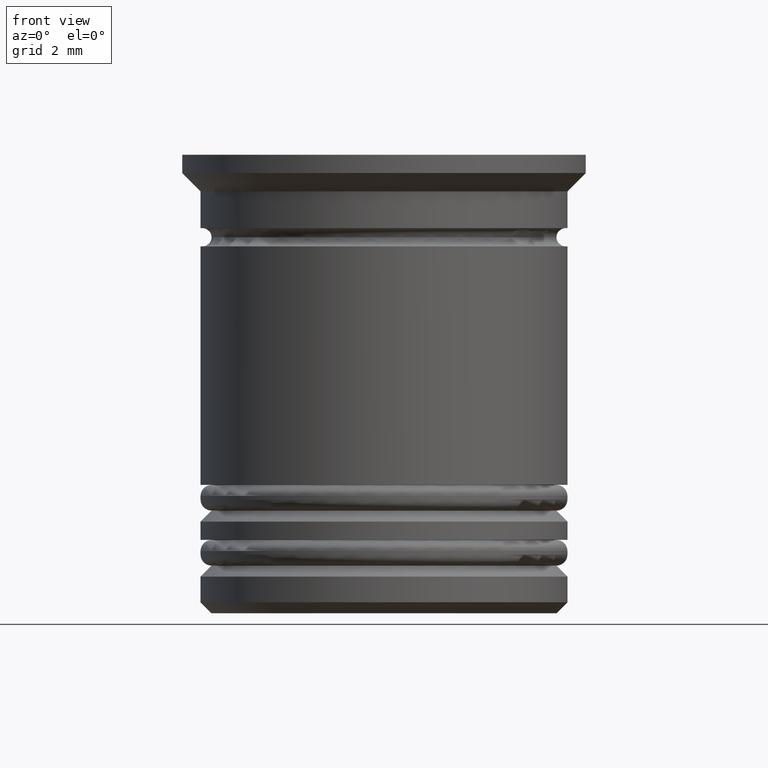
[diagram: clean part render]
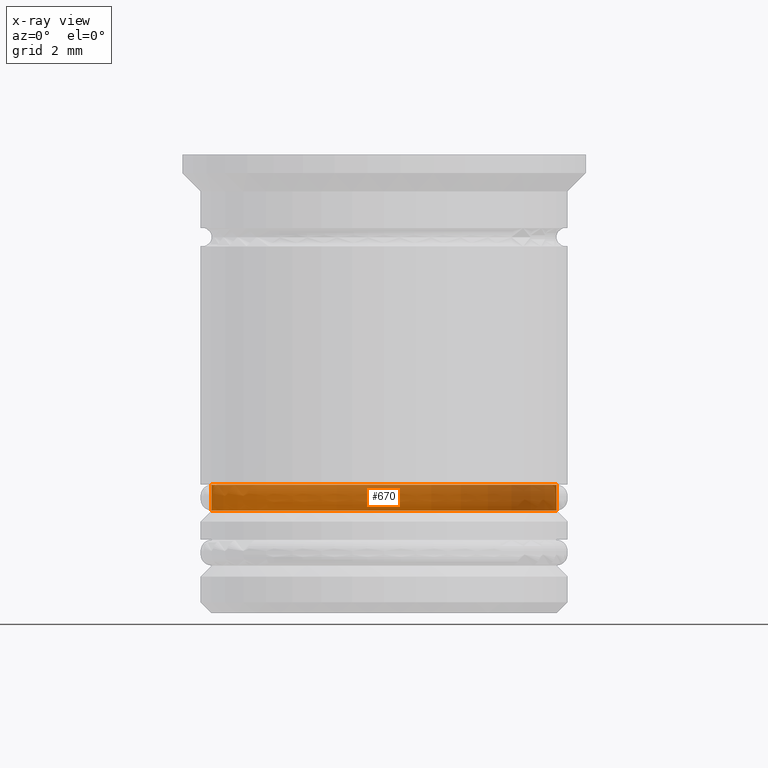
[diagram: x-ray — body ghosted, one internal face saturated and labeled with its STEP entity id]
A machine part, front view, then the same camera in x-ray: the body is ghosted and one INTERNAL B-rep face — a face not visible from any outside direction — is saturated and labeled: STEP entity #670.
In plain terms, the highlighted cylindrical surface (partial cylindrical patch) has radius 4.7 mm, axis along (-0, -0, 1).
Its self-contained STEP definition (entity closure, byte-faithful):
#41 = VERTEX_POINT ( 'NONE', #1628 ) ;
#116 = DIRECTION ( 'NONE',  ( 1.000000000000000000, 0.000000000000000000, 0.000000000000000000 ) ) ;
#130 = AXIS2_PLACEMENT_3D ( 'NONE', #1587, #610, #922 ) ;
#181 = VERTEX_POINT ( 'NONE', #609 ) ;
#214 = ORIENTED_EDGE ( 'NONE', *, *, #1290, .T. ) ;
#294 = DIRECTION ( 'NONE',  ( -0.000000000000000000, -0.000000000000000000, 1.000000000000000000 ) ) ;
#389 = AXIS2_PLACEMENT_3D ( 'NONE', #1134, #1158, #1650 ) ;
#498 = ORIENTED_EDGE ( 'NONE', *, *, #1925, .F. ) ;
#535 = EDGE_LOOP ( 'NONE', ( #801, #214, #1146, #498 ) ) ;
#570 = VECTOR ( 'NONE', #1499, 1000.000000000000000 ) ;
#609 = CARTESIAN_POINT ( 'NONE',  ( 4.700000000000001066, 0.000000000000000000, -9.000000000000001776 ) ) ;
#610 = DIRECTION ( 'NONE',  ( -0.000000000000000000, -0.000000000000000000, 1.000000000000000000 ) ) ;
#616 = CARTESIAN_POINT ( 'NONE',  ( 4.700000000000001066, 0.000000000000000000, 0.000000000000000000 ) ) ;
#670 = ADVANCED_FACE ( 'NONE', ( #1889 ), #1728, .T. ) ;
#754 = DIRECTION ( 'NONE',  ( -0.000000000000000000, -0.000000000000000000, 1.000000000000000000 ) ) ;
#801 = ORIENTED_EDGE ( 'NONE', *, *, #960, .T. ) ;
#861 = LINE ( 'NONE', #1809, #570 ) ;
#922 = DIRECTION ( 'NONE',  ( 1.000000000000000000, 0.000000000000000000, 0.000000000000000000 ) ) ;
#960 = EDGE_CURVE ( 'NONE', #1653, #41, #1359, .T. ) ;
#1053 = EDGE_CURVE ( 'NONE', #181, #1136, #1698, .T. ) ;
#1095 = AXIS2_PLACEMENT_3D ( 'NONE', #1584, #294, #116 ) ;
#1134 = CARTESIAN_POINT ( 'NONE',  ( 0.000000000000000000, 0.000000000000000000, -9.700000000000008171 ) ) ;
#1136 = VERTEX_POINT ( 'NONE', #1213 ) ;
#1146 = ORIENTED_EDGE ( 'NONE', *, *, #1053, .F. ) ;
#1158 = DIRECTION ( 'NONE',  ( -0.000000000000000000, -0.000000000000000000, 1.000000000000000000 ) ) ;
#1213 = CARTESIAN_POINT ( 'NONE',  ( -4.700000000000001066, 5.755839955992560641E-16, -9.000000000000001776 ) ) ;
#1290 = EDGE_CURVE ( 'NONE', #41, #1136, #861, .T. ) ;
#1359 = CIRCLE ( 'NONE', #389, 4.700000000000001066 ) ;
#1499 = DIRECTION ( 'NONE',  ( -0.000000000000000000, -0.000000000000000000, 1.000000000000000000 ) ) ;
#1555 = LINE ( 'NONE', #616, #1938 ) ;
#1584 = CARTESIAN_POINT ( 'NONE',  ( 0.000000000000000000, 0.000000000000000000, 0.000000000000000000 ) ) ;
#1587 = CARTESIAN_POINT ( 'NONE',  ( 0.000000000000000000, 0.000000000000000000, -9.000000000000001776 ) ) ;
#1628 = CARTESIAN_POINT ( 'NONE',  ( -4.700000000000001066, 5.755839955992560641E-16, -9.700000000000008171 ) ) ;
#1650 = DIRECTION ( 'NONE',  ( -1.000000000000000000, 0.000000000000000000, 0.000000000000000000 ) ) ;
#1653 = VERTEX_POINT ( 'NONE', #1861 ) ;
#1698 = CIRCLE ( 'NONE', #130, 4.700000000000001066 ) ;
#1728 = CYLINDRICAL_SURFACE ( 'NONE', #1095, 4.700000000000001066 ) ;
#1809 = CARTESIAN_POINT ( 'NONE',  ( -4.700000000000001066, 5.755839955992560641E-16, 0.000000000000000000 ) ) ;
#1861 = CARTESIAN_POINT ( 'NONE',  ( 4.700000000000001066, 0.000000000000000000, -9.700000000000008171 ) ) ;
#1889 = FACE_OUTER_BOUND ( 'NONE', #535, .T. ) ;
#1925 = EDGE_CURVE ( 'NONE', #1653, #181, #1555, .T. ) ;
#1938 = VECTOR ( 'NONE', #754, 1000.000000000000000 ) ;